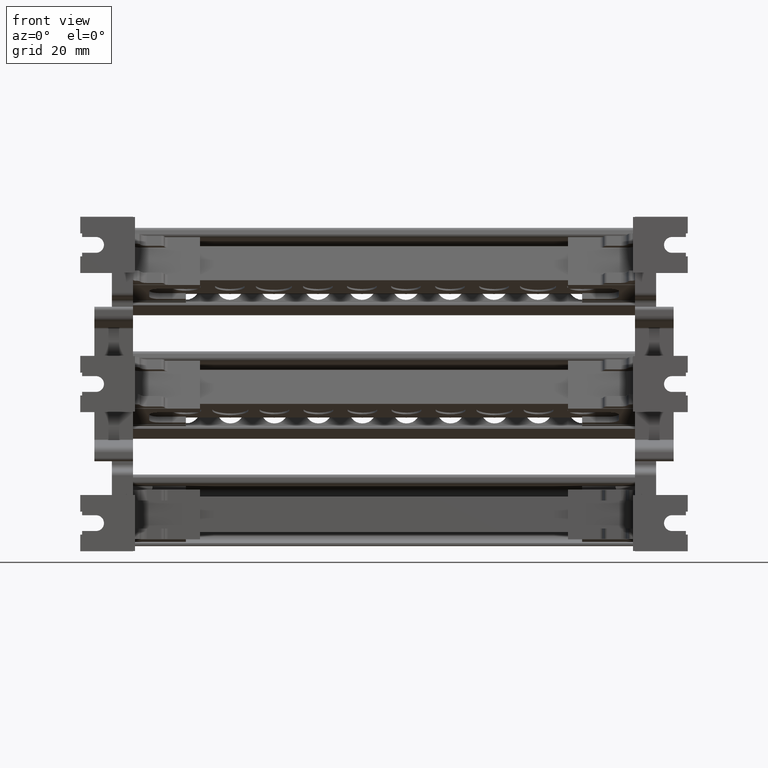
[diagram: clean part render]
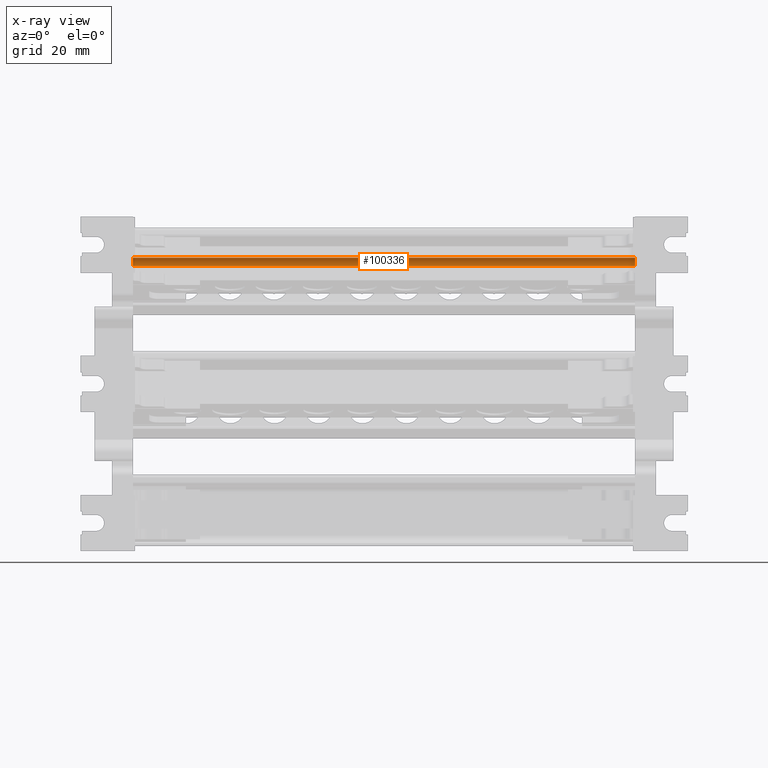
[diagram: x-ray — body ghosted, one internal face saturated and labeled with its STEP entity id]
A machine part, front view, then the same camera in x-ray: the body is ghosted and one INTERNAL B-rep face — a face not visible from any outside direction — is saturated and labeled: STEP entity #100336.
In plain terms, the highlighted cylindrical surface (edge-blend (fillet) strip) has radius 2 mm, axis along (-1, 0, -0).
Its self-contained STEP definition (entity closure, byte-faithful):
#7314 = EDGE_CURVE ( 'NONE', #110804, #45364, #39962, .T. ) ;
#7955 = EDGE_CURVE ( 'NONE', #110985, #45321, #40097, .T. ) ;
#8136 = EDGE_CURVE ( 'NONE', #110985, #110804, #31101, .T. ) ;
#20121 = VECTOR ( 'NONE', #67034, 1000.000000000000000 ) ;
#24178 = CARTESIAN_POINT ( 'NONE',  ( 44.19805696747483400, 275.5479161756297200, 36.58474350896630500 ) ) ;
#24199 = CARTESIAN_POINT ( 'NONE',  ( -98.30194303252655200, 275.5479161756310300, 36.58474350896568000 ) ) ;
#30862 = DIRECTION ( 'NONE',  ( -1.000000000000000000, 8.490997600938255900E-015, -5.655767068175815700E-015 ) ) ;
#30946 = DIRECTION ( 'NONE',  ( -6.938893903907029600E-015, -1.000000000000000000, 0.0000000000000000000 ) ) ;
#30949 = CARTESIAN_POINT ( 'NONE',  ( -98.30194303252656600, 273.6160645230527300, 37.10238159917046400 ) ) ;
#31095 = CARTESIAN_POINT ( 'NONE',  ( 12.17005696747476600, 274.1673380605938600, 39.02490532771284400 ) ) ;
#31096 = DIRECTION ( 'NONE',  ( 1.000000000000000000, -8.490997600938255900E-015, 5.655767068175815700E-015 ) ) ;
#31101 = LINE ( 'NONE', #31095, #40153 ) ;
#39939 = AXIS2_PLACEMENT_3D ( 'NONE', #114926, #114936, #114912 ) ;
#39962 = CIRCLE ( 'NONE', #39939, 2.000000000000057300 ) ;
#40097 = CIRCLE ( 'NONE', #40110, 2.000000000000057300 ) ;
#40110 = AXIS2_PLACEMENT_3D ( 'NONE', #30949, #30862, #30946 ) ;
#40153 = VECTOR ( 'NONE', #31096, 1000.000000000000000 ) ;
#42215 = EDGE_LOOP ( 'NONE', ( #50020, #49999, #50025, #49864 ) ) ;
#45321 = VERTEX_POINT ( 'NONE', #24199 ) ;
#45364 = VERTEX_POINT ( 'NONE', #24178 ) ;
#49864 = ORIENTED_EDGE ( 'NONE', *, *, #7955, .T. ) ;
#49999 = ORIENTED_EDGE ( 'NONE', *, *, #7314, .F. ) ;
#50020 = ORIENTED_EDGE ( 'NONE', *, *, #99573, .F. ) ;
#50025 = ORIENTED_EDGE ( 'NONE', *, *, #8136, .F. ) ;
#55464 = AXIS2_PLACEMENT_3D ( 'NONE', #64398, #64399, #64388 ) ;
#64383 = FACE_OUTER_BOUND ( 'NONE', #42215, .T. ) ;
#64388 = DIRECTION ( 'NONE',  ( -8.673617379883787800E-015, -1.000000000000000000, 0.0000000000000000000 ) ) ;
#64398 = CARTESIAN_POINT ( 'NONE',  ( 12.17005696747477300, 273.6160645230517600, 37.10238159917108900 ) ) ;
#64399 = DIRECTION ( 'NONE',  ( -1.000000000000000000, 8.490997600938255900E-015, -5.655767068175815700E-015 ) ) ;
#64418 = CYLINDRICAL_SURFACE ( 'NONE', #55464, 2.000000000000057300 ) ;
#67034 = DIRECTION ( 'NONE',  ( -1.000000000000000000, 8.490997600938255900E-015, -5.655767068175815700E-015 ) ) ;
#67088 = LINE ( 'NONE', #67106, #20121 ) ;
#67106 = CARTESIAN_POINT ( 'NONE',  ( 12.17005696747479100, 275.5479161756300600, 36.58474350896655400 ) ) ;
#81037 = CARTESIAN_POINT ( 'NONE',  ( -98.30194303252660900, 274.1673380605950000, 39.02490532771216200 ) ) ;
#83438 = CARTESIAN_POINT ( 'NONE',  ( 44.19805696747482000, 274.1673380605938100, 39.02490532771297900 ) ) ;
#99573 = EDGE_CURVE ( 'NONE', #45364, #45321, #67088, .T. ) ;
#100336 = ADVANCED_FACE ( 'NONE', ( #64383 ), #64418, .F. ) ;
#110804 = VERTEX_POINT ( 'NONE', #83438 ) ;
#110985 = VERTEX_POINT ( 'NONE', #81037 ) ;
#114912 = DIRECTION ( 'NONE',  ( -6.938893903907029600E-015, -1.000000000000000000, 0.0000000000000000000 ) ) ;
#114926 = CARTESIAN_POINT ( 'NONE',  ( 44.19805696747481200, 273.6160645230514800, 37.10238159917127400 ) ) ;
#114936 = DIRECTION ( 'NONE',  ( -1.000000000000000000, 8.490997600938255900E-015, -5.655767068175815700E-015 ) ) ;